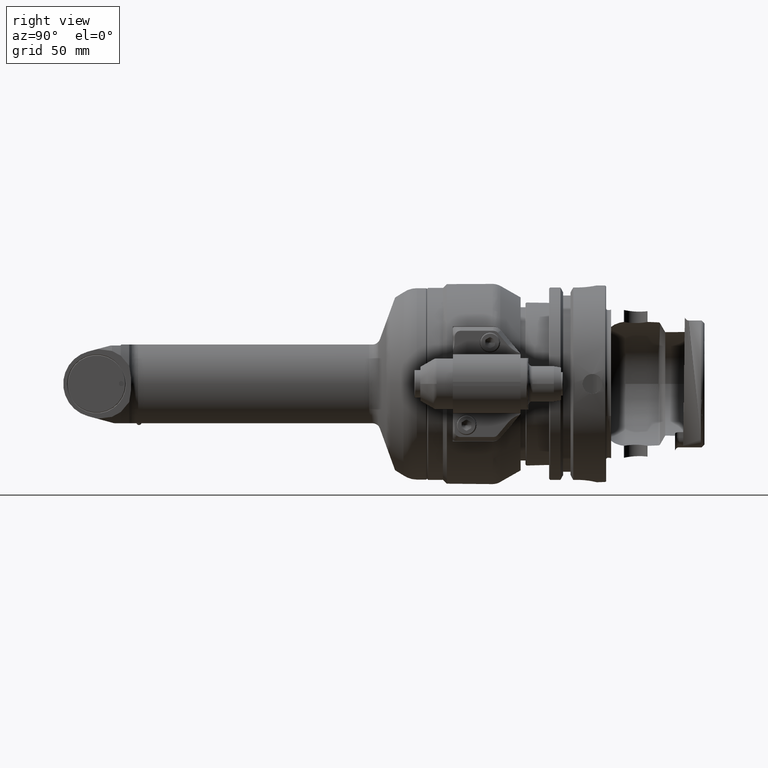
[diagram: clean part render]
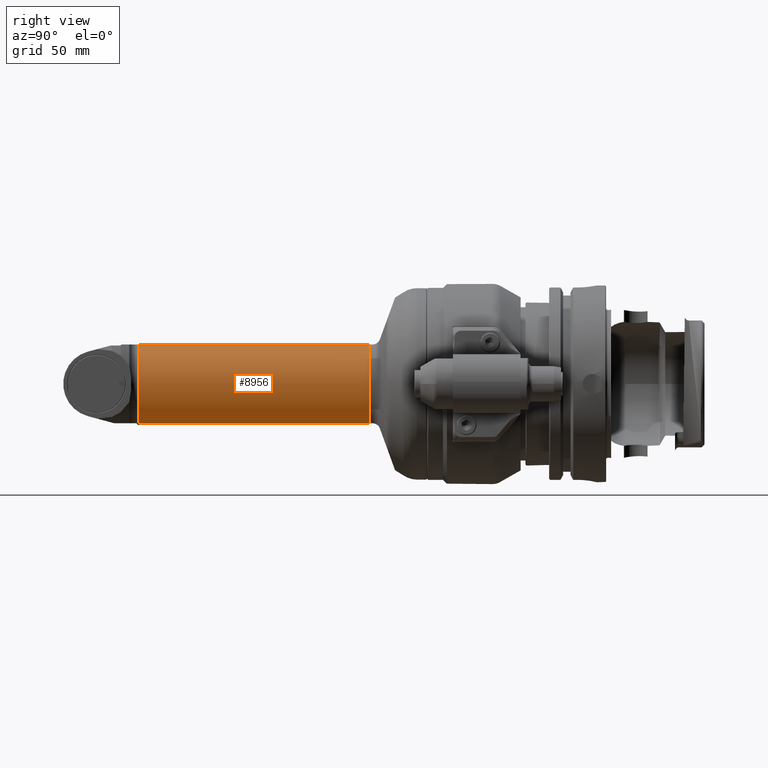
[diagram: same view with one face highlighted and labeled with its STEP entity id]
A machine part, right view. The second image highlights one B-rep face of the part: STEP entity #8956.
In plain terms, the highlighted cylindrical surface (partial cylindrical patch) has radius 25.5 mm, axis along (-0, -1, 0).
Its self-contained STEP definition (entity closure, byte-faithful):
#1041=FACE_OUTER_BOUND('',#1621,.T.);
#1621=EDGE_LOOP('',(#7694,#7695,#7696,#7697));
#2109=CIRCLE('',#9910,25.5);
#2110=CIRCLE('',#9912,25.5);
#2836=LINE('',#56916,#3435);
#2845=LINE('',#57054,#3444);
#3435=VECTOR('',#11966,117.4166943204);
#3444=VECTOR('',#12001,117.4166943204);
#4204=VERTEX_POINT('',#56900);
#4205=VERTEX_POINT('',#56915);
#4231=VERTEX_POINT('',#57044);
#4232=VERTEX_POINT('',#57053);
#5389=EDGE_CURVE('',#4205,#4204,#2836,.T.);
#5421=EDGE_CURVE('',#4232,#4231,#2845,.T.);
#5438=EDGE_CURVE('',#4232,#4204,#2109,.T.);
#5439=EDGE_CURVE('',#4205,#4231,#2110,.T.);
#7694=ORIENTED_EDGE('',*,*,#5439,.F.);
#7695=ORIENTED_EDGE('',*,*,#5389,.T.);
#7696=ORIENTED_EDGE('',*,*,#5438,.F.);
#7697=ORIENTED_EDGE('',*,*,#5421,.T.);
#8544=CYLINDRICAL_SURFACE('',#9911,25.5);
#8956=ADVANCED_FACE('',(#1041),#8544,.T.);
#9910=AXIS2_PLACEMENT_3D('',#57105,#12028,#12029);
#9911=AXIS2_PLACEMENT_3D('',#57106,#12030,#12031);
#9912=AXIS2_PLACEMENT_3D('',#57107,#12032,#12033);
#11966=DIRECTION('',(1.,0.,0.));
#12001=DIRECTION('',(-1.,0.,0.));
#12028=DIRECTION('center_axis',(1.,0.,0.));
#12029=DIRECTION('ref_axis',(0.,0.62036439292379,-0.784313725490188));
#12030=DIRECTION('center_axis',(1.,0.,0.));
#12031=DIRECTION('ref_axis',(0.,0.83292124071012,-0.553391549243313));
#12032=DIRECTION('center_axis',(-1.,0.,0.));
#12033=DIRECTION('ref_axis',(0.,0.83292124071012,-0.553391549243313));
#56900=CARTESIAN_POINT('',(185.9177317978,15.81929201956,20.));
#56915=CARTESIAN_POINT('',(68.50103747742,15.81929201956,20.));
#56916=CARTESIAN_POINT('',(68.50103747742,15.81929201956,20.));
#57044=CARTESIAN_POINT('',(68.50103747742,15.81929201956,-20.));
#57053=CARTESIAN_POINT('',(185.9177317978,15.81929201956,-20.));
#57054=CARTESIAN_POINT('',(185.9177317978,15.81929201956,-20.));
#57105=CARTESIAN_POINT('Origin',(185.9177317978,0.,0.));
#57106=CARTESIAN_POINT('Origin',(127.2093846376,0.,0.));
#57107=CARTESIAN_POINT('Origin',(68.50103747742,0.,0.));